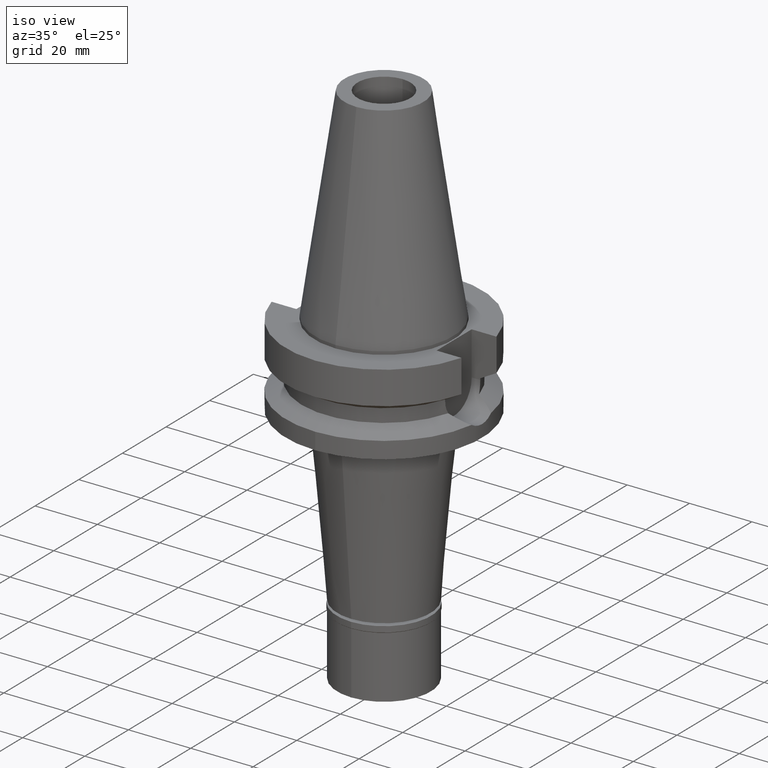
[diagram: clean part render]
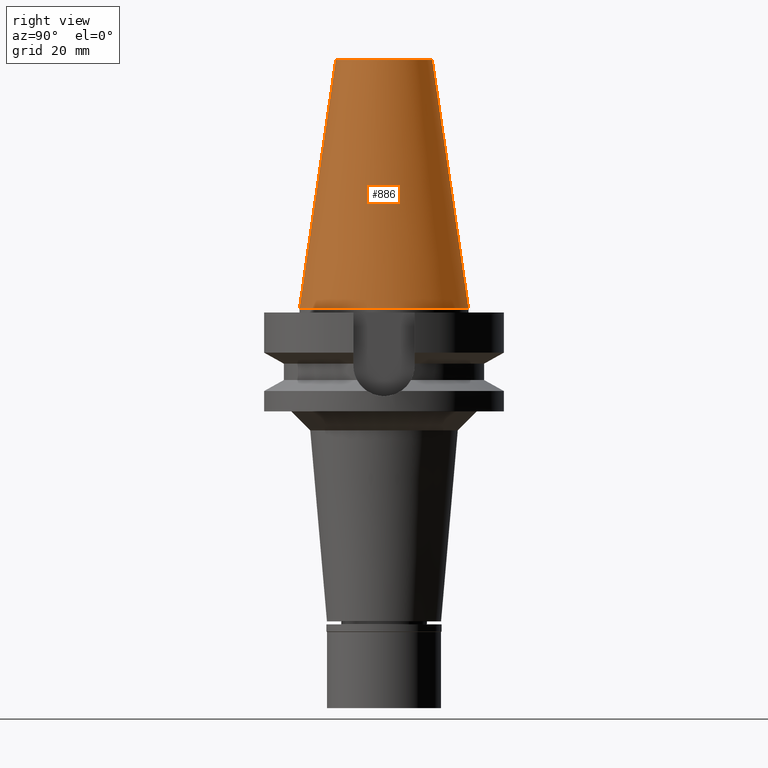
[diagram: tour spotlight — one face highlighted and labeled with its STEP entity id]
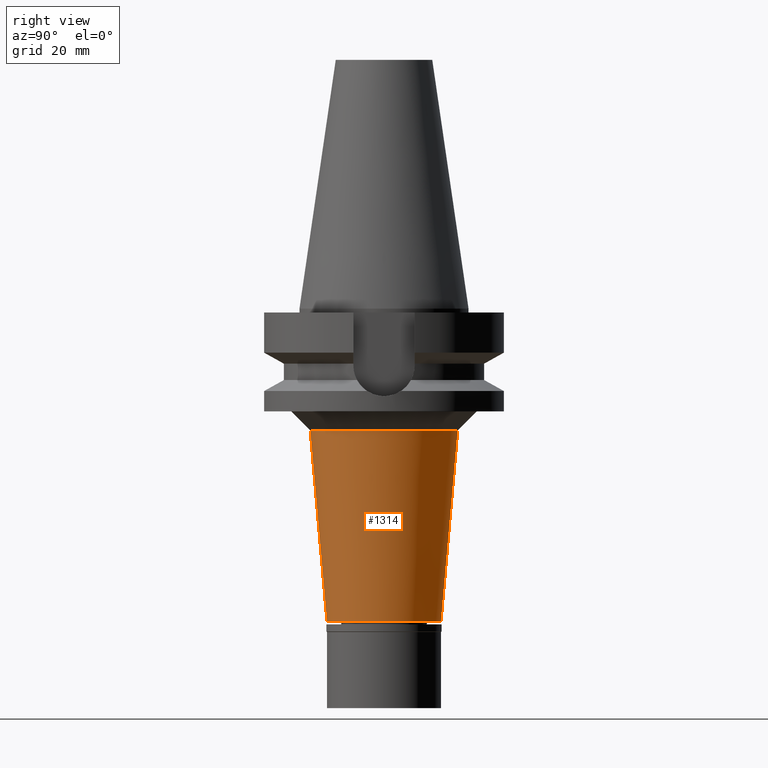
[diagram: tour spotlight — one face highlighted and labeled with its STEP entity id]
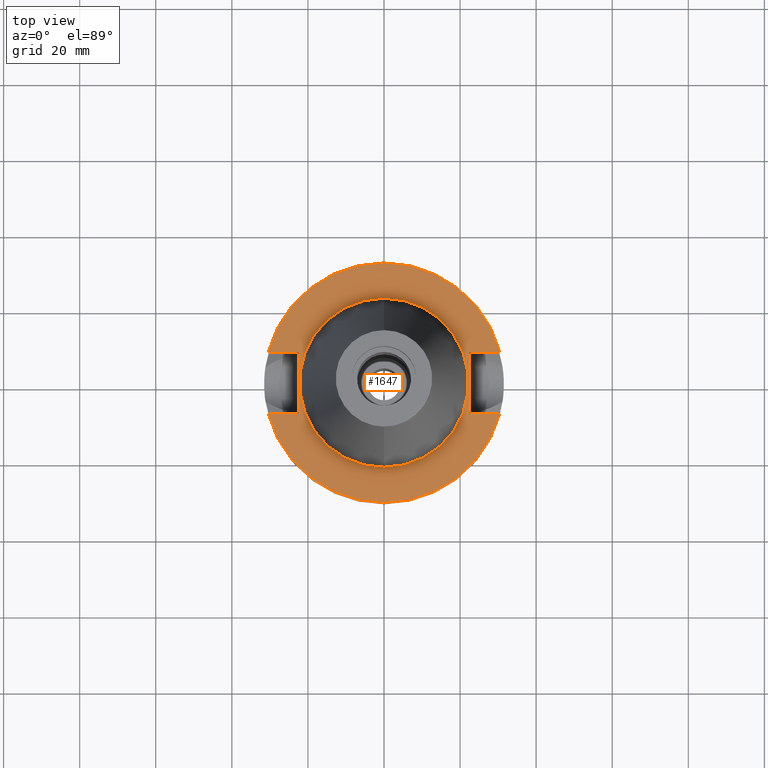
[diagram: tour spotlight — one face highlighted and labeled with its STEP entity id]
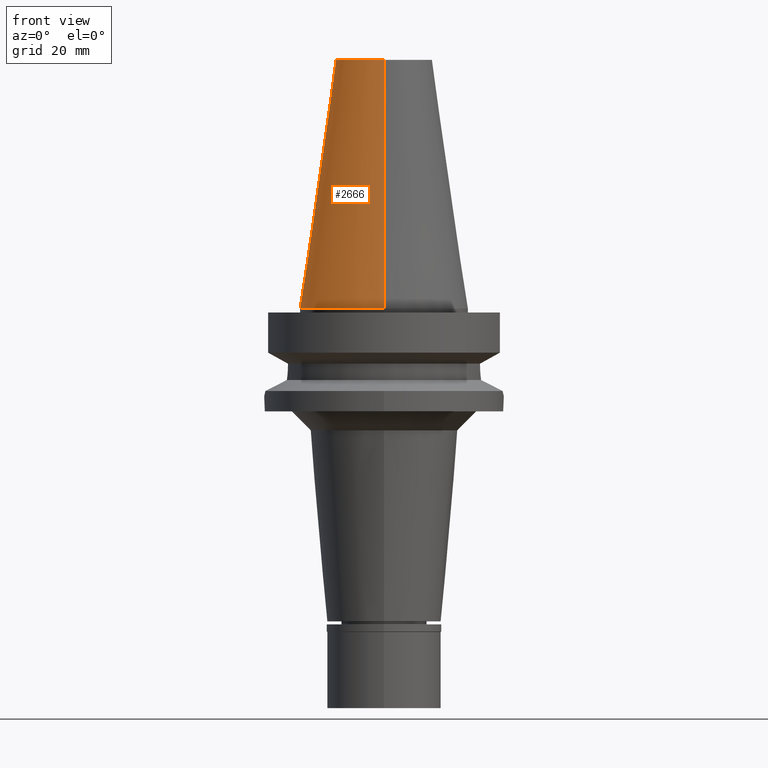
[diagram: tour spotlight — one face highlighted and labeled with its STEP entity id]
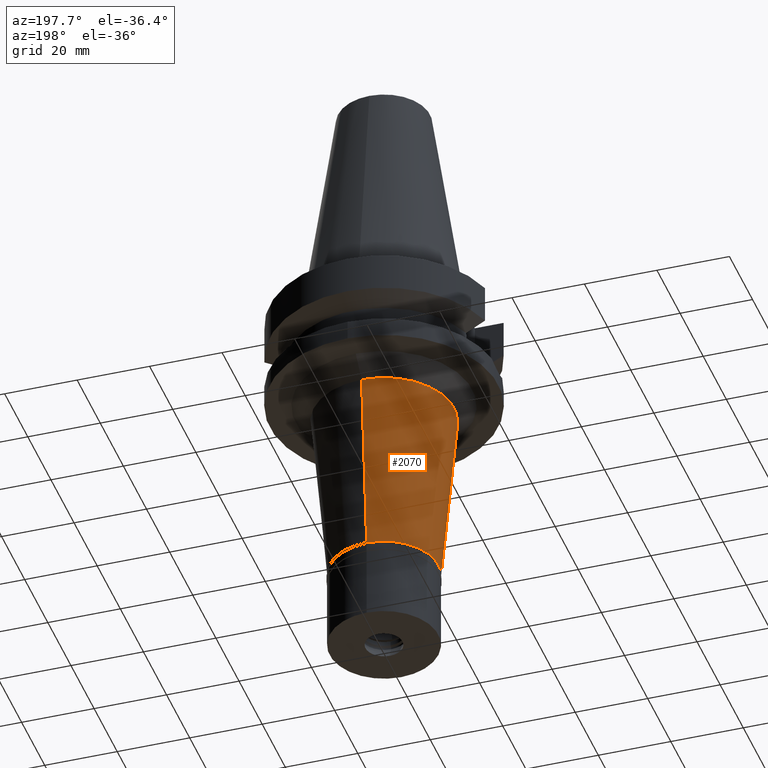
[diagram: tour spotlight — one face highlighted and labeled with its STEP entity id]
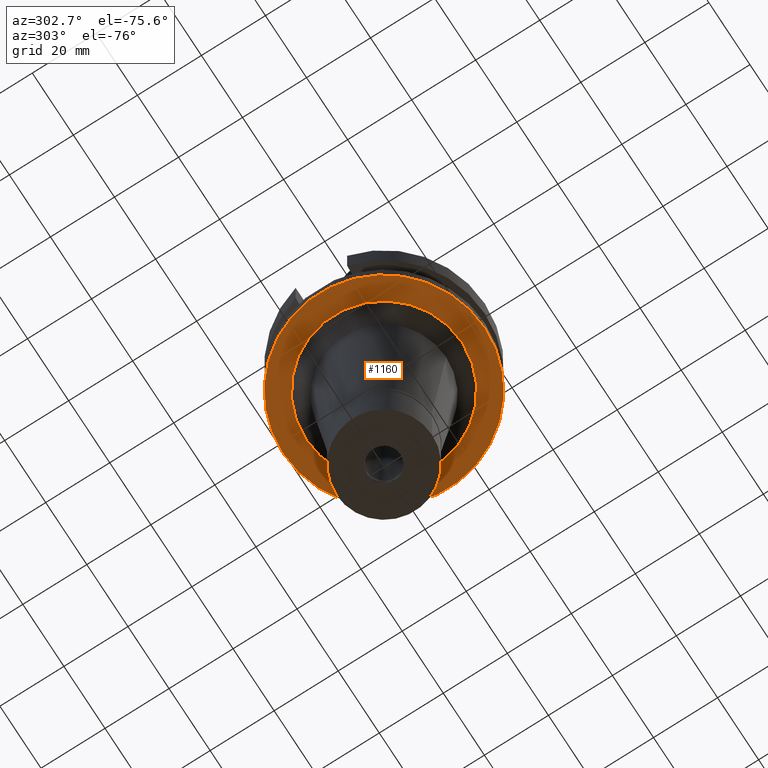
[diagram: tour spotlight — one face highlighted and labeled with its STEP entity id]
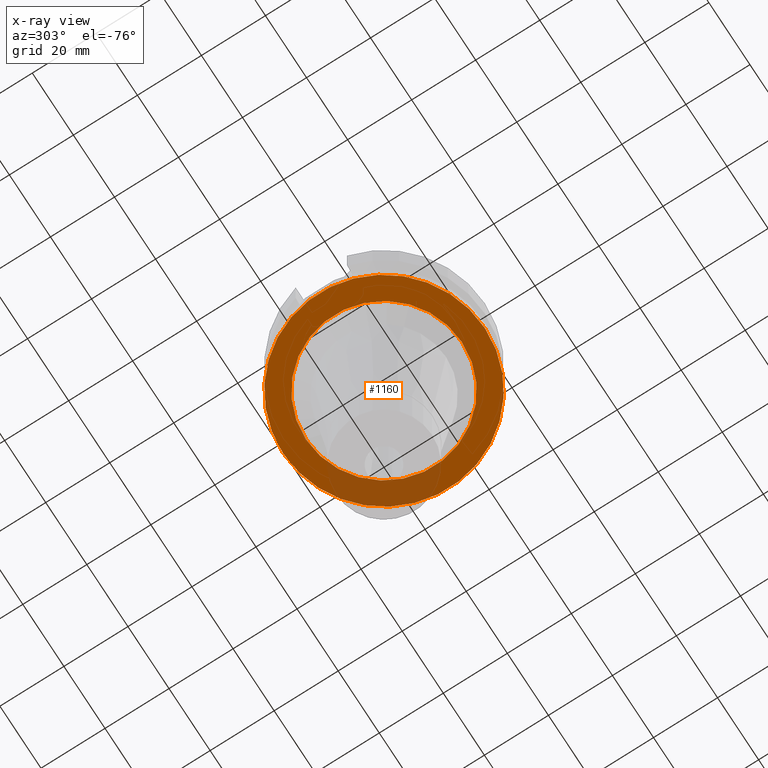
[diagram: x-ray of the same camera — body ghosted, this tour face saturated]
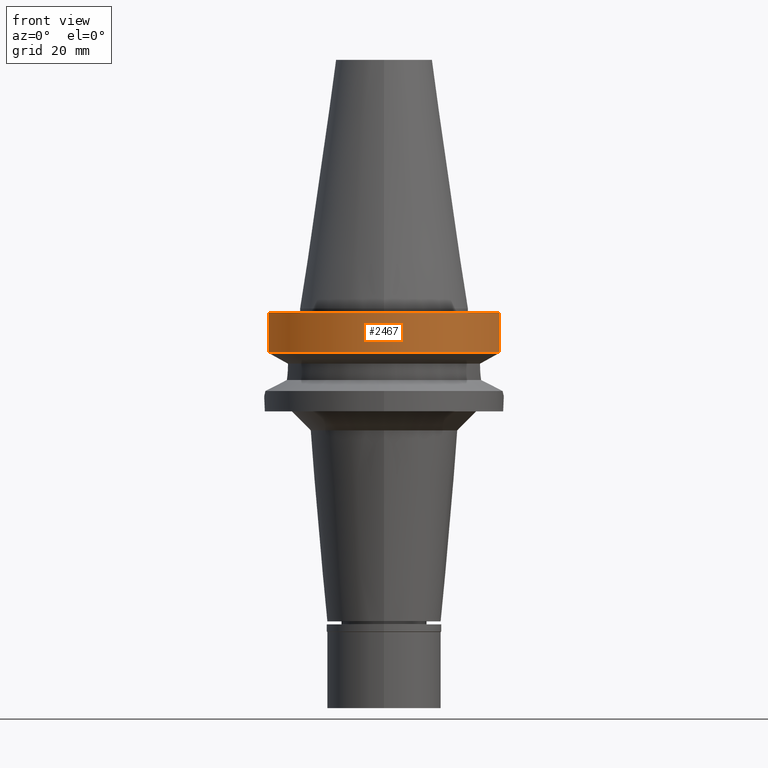
[diagram: tour spotlight — one face highlighted and labeled with its STEP entity id]
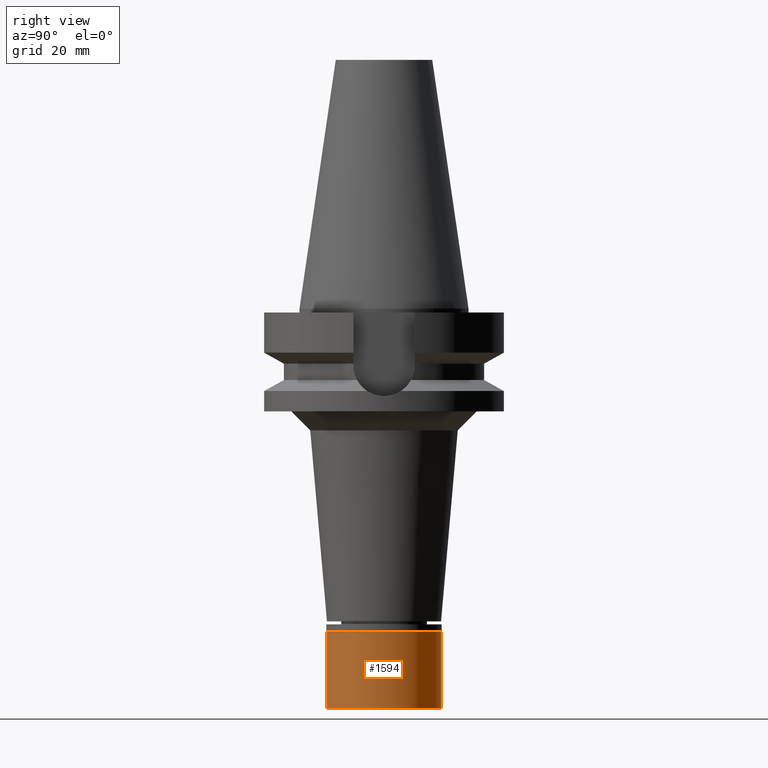
[diagram: tour spotlight — one face highlighted and labeled with its STEP entity id]
A machine part: a face-by-face anatomy tour. The part has 81 B-rep faces; the first image is the clean iso view, then the 8 largest visible faces are spotlighted one at a time (largest first), each with its STEP entity span.

Face 1 — right view, entity #886. In plain terms, the highlighted conical surface has half-angle 8.297 deg.
Definition (entity closure, byte-faithful):
#36 = CIRCLE ( 'NONE', #2490, 12.68766899429999917 ) ;
#93 = CARTESIAN_POINT ( 'NONE',  ( 0.0000000000000000000, 22.22500000000000142, 7.815970093360999808E-14 ) ) ;
#194 = CARTESIAN_POINT ( 'NONE',  ( 0.0000000000000000000, 1.625106302469000024E-14, 65.40000000000000568 ) ) ;
#249 = EDGE_CURVE ( 'NONE', #2617, #392, #2970, .T. ) ;
#284 = DIRECTION ( 'NONE',  ( 0.0000000000000000000, 0.0000000000000000000, -1.000000000000000000 ) ) ;
#298 = EDGE_CURVE ( 'NONE', #2639, #2617, #36, .T. ) ;
#311 = EDGE_LOOP ( 'NONE', ( #2395, #1339, #1179, #3008 ) ) ;
#376 = DIRECTION ( 'NONE',  ( 0.0000000000000000000, 0.0000000000000000000, -1.000000000000000000 ) ) ;
#392 = VERTEX_POINT ( 'NONE', #1626 ) ;
#644 = CARTESIAN_POINT ( 'NONE',  ( 0.0000000000000000000, 1.625106302469000024E-14, 32.70000000000000284 ) ) ;
#727 = DIRECTION ( 'NONE',  ( 0.0000000000000000000, 1.000000000000000000, 0.0000000000000000000 ) ) ;
#741 = EDGE_CURVE ( 'NONE', #2639, #1825, #826, .T. ) ;
#826 = LINE ( 'NONE', #857, #2342 ) ;
#857 = CARTESIAN_POINT ( 'NONE',  ( 0.0000000000000000000, 12.68766899429999917, 65.40000000000000568 ) ) ;
#885 = FACE_OUTER_BOUND ( 'NONE', #311, .T. ) ;
#886 = ADVANCED_FACE ( 'NONE', ( #885 ), #1258, .T. ) ;
#985 = AXIS2_PLACEMENT_3D ( 'NONE', #1750, #284, #727 ) ;
#1179 = ORIENTED_EDGE ( 'NONE', *, *, #2765, .F. ) ;
#1258 = CONICAL_SURFACE ( 'NONE', #2538, 17.45633449714999941, 0.1448099680379422438 ) ;
#1316 = DIRECTION ( 'NONE',  ( 0.0000000000000000000, 0.1443043893539925626, -0.9895333461855498891 ) ) ;
#1339 = ORIENTED_EDGE ( 'NONE', *, *, #249, .T. ) ;
#1354 = CARTESIAN_POINT ( 'NONE',  ( 0.0000000000000000000, -12.68766899429999917, 65.40000000000000568 ) ) ;
#1626 = CARTESIAN_POINT ( 'NONE',  ( 0.0000000000000000000, -22.22500000000000142, 7.815970093360999808E-14 ) ) ;
#1750 = CARTESIAN_POINT ( 'NONE',  ( 0.0000000000000000000, 1.625106302469000024E-14, 2.842170943039999687E-14 ) ) ;
#1825 = VERTEX_POINT ( 'NONE', #93 ) ;
#1867 = DIRECTION ( 'NONE',  ( 0.0000000000000000000, -1.000000000000000000, 0.0000000000000000000 ) ) ;
#1916 = DIRECTION ( 'NONE',  ( 0.0000000000000000000, 1.000000000000000000, 0.0000000000000000000 ) ) ;
#2342 = VECTOR ( 'NONE', #1316, 1000.000000000000114 ) ;
#2395 = ORIENTED_EDGE ( 'NONE', *, *, #298, .T. ) ;
#2490 = AXIS2_PLACEMENT_3D ( 'NONE', #194, #3059, #1916 ) ;
#2517 = CIRCLE ( 'NONE', #985, 22.22500000000000142 ) ;
#2538 = AXIS2_PLACEMENT_3D ( 'NONE', #644, #376, #1867 ) ;
#2601 = CARTESIAN_POINT ( 'NONE',  ( 0.0000000000000000000, -12.68766899429999917, 65.40000000000000568 ) ) ;
#2617 = VERTEX_POINT ( 'NONE', #2601 ) ;
#2620 = CARTESIAN_POINT ( 'NONE',  ( 0.0000000000000000000, 12.68766899429999917, 65.40000000000000568 ) ) ;
#2639 = VERTEX_POINT ( 'NONE', #2620 ) ;
#2765 = EDGE_CURVE ( 'NONE', #1825, #392, #2517, .T. ) ;
#2844 = VECTOR ( 'NONE', #3019, 1000.000000000000114 ) ;
#2970 = LINE ( 'NONE', #1354, #2844 ) ;
#3008 = ORIENTED_EDGE ( 'NONE', *, *, #741, .F. ) ;
#3019 = DIRECTION ( 'NONE',  ( 0.0000000000000000000, -0.1443043893539925626, -0.9895333461855498891 ) ) ;
#3059 = DIRECTION ( 'NONE',  ( 0.0000000000000000000, 0.0000000000000000000, -1.000000000000000000 ) ) ;

Face 2 — right view, entity #1314. In plain terms, the highlighted conical surface has half-angle 5 deg.
Definition (entity closure, byte-faithful):
#118 = VECTOR ( 'NONE', #2284, 1000.000000000000000 ) ;
#136 = LINE ( 'NONE', #1610, #1121 ) ;
#140 = CARTESIAN_POINT ( 'NONE',  ( 0.0000000000000000000, 0.0000000000000000000, -57.10000000000000142 ) ) ;
#334 = EDGE_CURVE ( 'NONE', #2235, #2457, #136, .T. ) ;
#351 = LINE ( 'NONE', #1860, #118 ) ;
#368 = DIRECTION ( 'NONE',  ( 0.0000000000000000000, -1.000000000000000000, 0.0000000000000000000 ) ) ;
#555 = DIRECTION ( 'NONE',  ( 0.0000000000000000000, -1.000000000000000000, 0.0000000000000000000 ) ) ;
#635 = CARTESIAN_POINT ( 'NONE',  ( 0.0000000000000000000, 0.0000000000000000000, -82.19999999999998863 ) ) ;
#744 = EDGE_CURVE ( 'NONE', #2880, #2235, #1317, .T. ) ;
#976 = ORIENTED_EDGE ( 'NONE', *, *, #1874, .T. ) ;
#1066 = DIRECTION ( 'NONE',  ( 0.0000000000000000000, 1.000000000000000000, 0.0000000000000000000 ) ) ;
#1121 = VECTOR ( 'NONE', #2579, 1000.000000000000000 ) ;
#1130 = DIRECTION ( 'NONE',  ( 0.0000000000000000000, 0.0000000000000000000, 1.000000000000000000 ) ) ;
#1314 = ADVANCED_FACE ( 'NONE', ( #1377 ), #1375, .T. ) ;
#1317 = CIRCLE ( 'NONE', #1575, 19.39193090899999916 ) ;
#1374 = DIRECTION ( 'NONE',  ( 0.0000000000000000000, 0.0000000000000000000, 1.000000000000000000 ) ) ;
#1375 = CONICAL_SURFACE ( 'NONE', #3131, 17.19596545450000136, 0.08726646259969973729 ) ;
#1377 = FACE_OUTER_BOUND ( 'NONE', #1869, .T. ) ;
#1395 = VERTEX_POINT ( 'NONE', #2598 ) ;
#1575 = AXIS2_PLACEMENT_3D ( 'NONE', #2756, #1769, #555 ) ;
#1584 = CARTESIAN_POINT ( 'NONE',  ( 0.0000000000000000000, -19.39193090899999916, -32.00000000000000000 ) ) ;
#1610 = CARTESIAN_POINT ( 'NONE',  ( 0.0000000000000000000, 19.39193090899999916, -32.00000000000000000 ) ) ;
#1769 = DIRECTION ( 'NONE',  ( 0.0000000000000000000, 0.0000000000000000000, 1.000000000000000000 ) ) ;
#1816 = EDGE_CURVE ( 'NONE', #2880, #1395, #351, .T. ) ;
#1860 = CARTESIAN_POINT ( 'NONE',  ( 0.0000000000000000000, -19.39193090899999916, -32.00000000000000000 ) ) ;
#1869 = EDGE_LOOP ( 'NONE', ( #2057, #2984, #976, #2159 ) ) ;
#1874 = EDGE_CURVE ( 'NONE', #1395, #2457, #2775, .T. ) ;
#1990 = CARTESIAN_POINT ( 'NONE',  ( 0.0000000000000000000, 19.39193090899999916, -32.00000000000000000 ) ) ;
#2057 = ORIENTED_EDGE ( 'NONE', *, *, #744, .F. ) ;
#2159 = ORIENTED_EDGE ( 'NONE', *, *, #334, .F. ) ;
#2235 = VERTEX_POINT ( 'NONE', #1990 ) ;
#2284 = DIRECTION ( 'NONE',  ( 0.0000000000000000000, 0.08715574274765398866, -0.9961946980917458783 ) ) ;
#2290 = CARTESIAN_POINT ( 'NONE',  ( 0.0000000000000000000, 15.00000000000000000, -82.19999999999998863 ) ) ;
#2457 = VERTEX_POINT ( 'NONE', #2290 ) ;
#2579 = DIRECTION ( 'NONE',  ( 0.0000000000000000000, -0.08715574274765398866, -0.9961946980917458783 ) ) ;
#2598 = CARTESIAN_POINT ( 'NONE',  ( 0.0000000000000000000, -15.00000000000000000, -82.19999999999998863 ) ) ;
#2632 = AXIS2_PLACEMENT_3D ( 'NONE', #635, #1374, #368 ) ;
#2756 = CARTESIAN_POINT ( 'NONE',  ( 0.0000000000000000000, 0.0000000000000000000, -32.00000000000000000 ) ) ;
#2775 = CIRCLE ( 'NONE', #2632, 15.00000000000000000 ) ;
#2880 = VERTEX_POINT ( 'NONE', #1584 ) ;
#2984 = ORIENTED_EDGE ( 'NONE', *, *, #1816, .T. ) ;
#3131 = AXIS2_PLACEMENT_3D ( 'NONE', #140, #1130, #1066 ) ;

Face 3 — top view, entity #1647. In plain terms, the highlighted planar face has unit normal (0, 0, -1).
Definition (entity closure, byte-faithful):
#41 = FACE_OUTER_BOUND ( 'NONE', #2684, .T. ) ;
#64 = CARTESIAN_POINT ( 'NONE',  ( -22.50000000000000000, -8.050000000000000711, -1.000000000000000000 ) ) ;
#106 = CARTESIAN_POINT ( 'NONE',  ( 22.50000000000000000, 8.050000000000000711, -1.000000000000000000 ) ) ;
#139 = CARTESIAN_POINT ( 'NONE',  ( -22.50000000000000000, 8.050000000000000711, -1.000000000000000000 ) ) ;
#169 = ORIENTED_EDGE ( 'NONE', *, *, #283, .F. ) ;
#202 = EDGE_LOOP ( 'NONE', ( #1708, #1279 ) ) ;
#223 = ORIENTED_EDGE ( 'NONE', *, *, #431, .F. ) ;
#231 = EDGE_CURVE ( 'NONE', #493, #1411, #1019, .T. ) ;
#243 = DIRECTION ( 'NONE',  ( 0.0000000000000000000, 1.000000000000000000, 0.0000000000000000000 ) ) ;
#283 = EDGE_CURVE ( 'NONE', #624, #2294, #876, .T. ) ;
#331 = CARTESIAN_POINT ( 'NONE',  ( 0.0000000000000000000, 22.22500000000000142, -1.000000000000000000 ) ) ;
#386 = EDGE_CURVE ( 'NONE', #2992, #2748, #1272, .T. ) ;
#396 = CARTESIAN_POINT ( 'NONE',  ( 0.0000000000000000000, 2.125803146300000032E-14, -1.000000000000000000 ) ) ;
#431 = EDGE_CURVE ( 'NONE', #1640, #854, #2096, .T. ) ;
#493 = VERTEX_POINT ( 'NONE', #677 ) ;
#516 = EDGE_CURVE ( 'NONE', #1946, #624, #1956, .T. ) ;
#522 = CARTESIAN_POINT ( 'NONE',  ( -30.45402272279000044, 8.050000000000000711, -1.000000000000000000 ) ) ;
#585 = VECTOR ( 'NONE', #3011, 1000.000000000000000 ) ;
#624 = VERTEX_POINT ( 'NONE', #522 ) ;
#626 = DIRECTION ( 'NONE',  ( 0.0000000000000000000, 1.000000000000000000, 0.0000000000000000000 ) ) ;
#633 = DIRECTION ( 'NONE',  ( 0.0000000000000000000, 0.0000000000000000000, -1.000000000000000000 ) ) ;
#677 = CARTESIAN_POINT ( 'NONE',  ( 0.0000000000000000000, -22.22500000000000142, -1.000000000000000000 ) ) ;
#692 = CARTESIAN_POINT ( 'NONE',  ( 22.50000000000000000, 8.050000000000000711, -1.000000000000000000 ) ) ;
#747 = VECTOR ( 'NONE', #2210, 1000.000000000000000 ) ;
#756 = CARTESIAN_POINT ( 'NONE',  ( 22.50000000000000000, 8.050000000000000711, -1.000000000000000000 ) ) ;
#854 = VERTEX_POINT ( 'NONE', #1134 ) ;
#876 = CIRCLE ( 'NONE', #2179, 31.50000000000000000 ) ;
#932 = DIRECTION ( 'NONE',  ( 0.0000000000000000000, -1.000000000000000000, 0.0000000000000000000 ) ) ;
#975 = EDGE_CURVE ( 'NONE', #1411, #493, #1001, .T. ) ;
#1001 = CIRCLE ( 'NONE', #2784, 22.22500000000000142 ) ;
#1018 = DIRECTION ( 'NONE',  ( 0.0000000000000000000, 0.0000000000000000000, 1.000000000000000000 ) ) ;
#1019 = CIRCLE ( 'NONE', #2286, 22.22500000000000142 ) ;
#1027 = DIRECTION ( 'NONE',  ( -1.000000000000000000, -3.550916904668000126E-14, 0.0000000000000000000 ) ) ;
#1030 = CARTESIAN_POINT ( 'NONE',  ( 0.0000000000000000000, 1.212400331155999925E-14, -1.000000000000000000 ) ) ;
#1047 = PLANE ( 'NONE',  #1971 ) ;
#1086 = VERTEX_POINT ( 'NONE', #2221 ) ;
#1134 = CARTESIAN_POINT ( 'NONE',  ( 22.50000000000000000, -8.050000000000000711, -1.000000000000000000 ) ) ;
#1197 = ORIENTED_EDGE ( 'NONE', *, *, #2993, .T. ) ;
#1206 = CARTESIAN_POINT ( 'NONE',  ( -30.45402272279000044, -8.050000000000000711, -1.000000000000000000 ) ) ;
#1272 = CIRCLE ( 'NONE', #2942, 31.50000000000000000 ) ;
#1273 = ORIENTED_EDGE ( 'NONE', *, *, #2260, .F. ) ;
#1279 = ORIENTED_EDGE ( 'NONE', *, *, #231, .F. ) ;
#1411 = VERTEX_POINT ( 'NONE', #331 ) ;
#1533 = CARTESIAN_POINT ( 'NONE',  ( 0.0000000000000000000, 2.125803146300000032E-14, -1.000000000000000000 ) ) ;
#1538 = DIRECTION ( 'NONE',  ( 1.000000000000000000, 3.573249715389999860E-14, 0.0000000000000000000 ) ) ;
#1599 = LINE ( 'NONE', #64, #2055 ) ;
#1605 = CARTESIAN_POINT ( 'NONE',  ( 0.0000000000000000000, 2.125803146300000032E-14, -1.000000000000000000 ) ) ;
#1637 = VECTOR ( 'NONE', #1027, 1000.000000000000000 ) ;
#1640 = VERTEX_POINT ( 'NONE', #756 ) ;
#1647 = ADVANCED_FACE ( 'NONE', ( #41, #1775 ), #1047, .F. ) ;
#1676 = VECTOR ( 'NONE', #2595, 1000.000000000000000 ) ;
#1701 = CARTESIAN_POINT ( 'NONE',  ( 22.50000000000000000, -8.050000000000000711, -1.000000000000000000 ) ) ;
#1708 = ORIENTED_EDGE ( 'NONE', *, *, #975, .F. ) ;
#1775 = FACE_BOUND ( 'NONE', #202, .T. ) ;
#1821 = CARTESIAN_POINT ( 'NONE',  ( 0.0000000000000000000, 2.125803146300000032E-14, -1.000000000000000000 ) ) ;
#1837 = DIRECTION ( 'NONE',  ( 0.0000000000000000000, 0.0000000000000000000, -1.000000000000000000 ) ) ;
#1851 = EDGE_CURVE ( 'NONE', #1640, #2294, #2097, .T. ) ;
#1922 = ORIENTED_EDGE ( 'NONE', *, *, #1851, .T. ) ;
#1946 = VERTEX_POINT ( 'NONE', #139 ) ;
#1956 = LINE ( 'NONE', #2165, #1637 ) ;
#1971 = AXIS2_PLACEMENT_3D ( 'NONE', #1030, #1998, #2963 ) ;
#1998 = DIRECTION ( 'NONE',  ( 0.0000000000000000000, 0.0000000000000000000, -1.000000000000000000 ) ) ;
#2055 = VECTOR ( 'NONE', #2750, 1000.000000000000000 ) ;
#2096 = LINE ( 'NONE', #692, #1676 ) ;
#2097 = LINE ( 'NONE', #106, #585 ) ;
#2165 = CARTESIAN_POINT ( 'NONE',  ( -22.50000000000000000, 8.050000000000000711, -1.000000000000000000 ) ) ;
#2179 = AXIS2_PLACEMENT_3D ( 'NONE', #1605, #1837, #626 ) ;
#2193 = CARTESIAN_POINT ( 'NONE',  ( 30.45402272279000044, 8.050000000000000711, -1.000000000000000000 ) ) ;
#2210 = DIRECTION ( 'NONE',  ( 0.0000000000000000000, 1.000000000000000000, 0.0000000000000000000 ) ) ;
#2221 = CARTESIAN_POINT ( 'NONE',  ( -22.50000000000000000, -8.050000000000000711, -1.000000000000000000 ) ) ;
#2226 = ORIENTED_EDGE ( 'NONE', *, *, #516, .F. ) ;
#2260 = EDGE_CURVE ( 'NONE', #1086, #1946, #2735, .T. ) ;
#2286 = AXIS2_PLACEMENT_3D ( 'NONE', #1821, #2792, #2309 ) ;
#2288 = CARTESIAN_POINT ( 'NONE',  ( 30.45402272279000044, -8.050000000000000711, -1.000000000000000000 ) ) ;
#2294 = VERTEX_POINT ( 'NONE', #2193 ) ;
#2296 = EDGE_CURVE ( 'NONE', #854, #2992, #2470, .T. ) ;
#2309 = DIRECTION ( 'NONE',  ( 0.0000000000000000000, -1.000000000000000000, 0.0000000000000000000 ) ) ;
#2470 = LINE ( 'NONE', #1701, #2927 ) ;
#2595 = DIRECTION ( 'NONE',  ( 0.0000000000000000000, -1.000000000000000000, 0.0000000000000000000 ) ) ;
#2618 = ORIENTED_EDGE ( 'NONE', *, *, #2296, .F. ) ;
#2684 = EDGE_LOOP ( 'NONE', ( #1197, #2828, #2618, #223, #1922, #169, #2226, #1273 ) ) ;
#2735 = LINE ( 'NONE', #3142, #747 ) ;
#2748 = VERTEX_POINT ( 'NONE', #1206 ) ;
#2750 = DIRECTION ( 'NONE',  ( -1.000000000000000000, 3.550916904668000126E-14, 0.0000000000000000000 ) ) ;
#2784 = AXIS2_PLACEMENT_3D ( 'NONE', #1533, #1018, #243 ) ;
#2792 = DIRECTION ( 'NONE',  ( 0.0000000000000000000, 0.0000000000000000000, 1.000000000000000000 ) ) ;
#2828 = ORIENTED_EDGE ( 'NONE', *, *, #386, .F. ) ;
#2927 = VECTOR ( 'NONE', #1538, 1000.000000000000000 ) ;
#2942 = AXIS2_PLACEMENT_3D ( 'NONE', #396, #633, #932 ) ;
#2963 = DIRECTION ( 'NONE',  ( 0.0000000000000000000, -1.000000000000000000, 0.0000000000000000000 ) ) ;
#2992 = VERTEX_POINT ( 'NONE', #2288 ) ;
#2993 = EDGE_CURVE ( 'NONE', #1086, #2748, #1599, .T. ) ;
#3011 = DIRECTION ( 'NONE',  ( 1.000000000000000000, -3.506251283225999947E-14, 0.0000000000000000000 ) ) ;
#3142 = CARTESIAN_POINT ( 'NONE',  ( -22.50000000000000000, -8.050000000000000711, -1.000000000000000000 ) ) ;

Face 4 — front view, entity #2666. In plain terms, the highlighted conical surface has half-angle 8.297 deg.
Definition (entity closure, byte-faithful):
#22 = CIRCLE ( 'NONE', #2327, 22.22500000000000142 ) ;
#93 = CARTESIAN_POINT ( 'NONE',  ( 0.0000000000000000000, 22.22500000000000142, 7.815970093360999808E-14 ) ) ;
#204 = DIRECTION ( 'NONE',  ( 0.0000000000000000000, 0.0000000000000000000, -1.000000000000000000 ) ) ;
#220 = CARTESIAN_POINT ( 'NONE',  ( 0.0000000000000000000, 1.625106302469000024E-14, 65.40000000000000568 ) ) ;
#226 = AXIS2_PLACEMENT_3D ( 'NONE', #1442, #204, #1195 ) ;
#249 = EDGE_CURVE ( 'NONE', #2617, #392, #2970, .T. ) ;
#392 = VERTEX_POINT ( 'NONE', #1626 ) ;
#494 = DIRECTION ( 'NONE',  ( 0.0000000000000000000, -1.000000000000000000, 0.0000000000000000000 ) ) ;
#525 = ORIENTED_EDGE ( 'NONE', *, *, #1108, .F. ) ;
#667 = EDGE_CURVE ( 'NONE', #2617, #2639, #2605, .T. ) ;
#668 = ORIENTED_EDGE ( 'NONE', *, *, #249, .F. ) ;
#741 = EDGE_CURVE ( 'NONE', #2639, #1825, #826, .T. ) ;
#826 = LINE ( 'NONE', #857, #2342 ) ;
#857 = CARTESIAN_POINT ( 'NONE',  ( 0.0000000000000000000, 12.68766899429999917, 65.40000000000000568 ) ) ;
#982 = CARTESIAN_POINT ( 'NONE',  ( 0.0000000000000000000, 1.625106302469000024E-14, 2.842170943039999687E-14 ) ) ;
#1108 = EDGE_CURVE ( 'NONE', #392, #1825, #22, .T. ) ;
#1195 = DIRECTION ( 'NONE',  ( 0.0000000000000000000, -1.000000000000000000, 0.0000000000000000000 ) ) ;
#1213 = DIRECTION ( 'NONE',  ( 0.0000000000000000000, 0.0000000000000000000, -1.000000000000000000 ) ) ;
#1316 = DIRECTION ( 'NONE',  ( 0.0000000000000000000, 0.1443043893539925626, -0.9895333461855498891 ) ) ;
#1354 = CARTESIAN_POINT ( 'NONE',  ( 0.0000000000000000000, -12.68766899429999917, 65.40000000000000568 ) ) ;
#1442 = CARTESIAN_POINT ( 'NONE',  ( 0.0000000000000000000, 1.625106302469000024E-14, 32.70000000000000284 ) ) ;
#1565 = EDGE_LOOP ( 'NONE', ( #525, #668, #2803, #1609 ) ) ;
#1609 = ORIENTED_EDGE ( 'NONE', *, *, #741, .T. ) ;
#1626 = CARTESIAN_POINT ( 'NONE',  ( 0.0000000000000000000, -22.22500000000000142, 7.815970093360999808E-14 ) ) ;
#1825 = VERTEX_POINT ( 'NONE', #93 ) ;
#2021 = DIRECTION ( 'NONE',  ( 0.0000000000000000000, 0.0000000000000000000, -1.000000000000000000 ) ) ;
#2182 = DIRECTION ( 'NONE',  ( 0.0000000000000000000, -1.000000000000000000, 0.0000000000000000000 ) ) ;
#2183 = AXIS2_PLACEMENT_3D ( 'NONE', #220, #1213, #2182 ) ;
#2327 = AXIS2_PLACEMENT_3D ( 'NONE', #982, #2021, #494 ) ;
#2342 = VECTOR ( 'NONE', #1316, 1000.000000000000114 ) ;
#2588 = FACE_OUTER_BOUND ( 'NONE', #1565, .T. ) ;
#2601 = CARTESIAN_POINT ( 'NONE',  ( 0.0000000000000000000, -12.68766899429999917, 65.40000000000000568 ) ) ;
#2605 = CIRCLE ( 'NONE', #2183, 12.68766899429999917 ) ;
#2617 = VERTEX_POINT ( 'NONE', #2601 ) ;
#2620 = CARTESIAN_POINT ( 'NONE',  ( 0.0000000000000000000, 12.68766899429999917, 65.40000000000000568 ) ) ;
#2639 = VERTEX_POINT ( 'NONE', #2620 ) ;
#2666 = ADVANCED_FACE ( 'NONE', ( #2588 ), #2987, .T. ) ;
#2803 = ORIENTED_EDGE ( 'NONE', *, *, #667, .T. ) ;
#2844 = VECTOR ( 'NONE', #3019, 1000.000000000000114 ) ;
#2970 = LINE ( 'NONE', #1354, #2844 ) ;
#2987 = CONICAL_SURFACE ( 'NONE', #226, 17.45633449714999941, 0.1448099680379422438 ) ;
#3019 = DIRECTION ( 'NONE',  ( 0.0000000000000000000, -0.1443043893539925626, -0.9895333461855498891 ) ) ;

Face 5 — auxiliary view, entity #2070. In plain terms, the highlighted conical surface has half-angle 5 deg.
Definition (entity closure, byte-faithful):
#118 = VECTOR ( 'NONE', #2284, 1000.000000000000000 ) ;
#126 = CIRCLE ( 'NONE', #436, 15.00000000000000000 ) ;
#136 = LINE ( 'NONE', #1610, #1121 ) ;
#292 = CARTESIAN_POINT ( 'NONE',  ( 0.0000000000000000000, 0.0000000000000000000, -32.00000000000000000 ) ) ;
#334 = EDGE_CURVE ( 'NONE', #2235, #2457, #136, .T. ) ;
#351 = LINE ( 'NONE', #1860, #118 ) ;
#436 = AXIS2_PLACEMENT_3D ( 'NONE', #1787, #2247, #2310 ) ;
#458 = CARTESIAN_POINT ( 'NONE',  ( 0.0000000000000000000, 0.0000000000000000000, -57.10000000000000142 ) ) ;
#786 = EDGE_CURVE ( 'NONE', #2880, #2235, #1205, .T. ) ;
#789 = EDGE_CURVE ( 'NONE', #2457, #1395, #126, .T. ) ;
#888 = ORIENTED_EDGE ( 'NONE', *, *, #334, .T. ) ;
#957 = DIRECTION ( 'NONE',  ( 0.0000000000000000000, 0.0000000000000000000, 1.000000000000000000 ) ) ;
#1121 = VECTOR ( 'NONE', #2579, 1000.000000000000000 ) ;
#1149 = AXIS2_PLACEMENT_3D ( 'NONE', #458, #957, #2838 ) ;
#1205 = CIRCLE ( 'NONE', #1464, 19.39193090899999916 ) ;
#1284 = EDGE_LOOP ( 'NONE', ( #2836, #2734, #2152, #888 ) ) ;
#1395 = VERTEX_POINT ( 'NONE', #2598 ) ;
#1464 = AXIS2_PLACEMENT_3D ( 'NONE', #292, #1806, #2723 ) ;
#1584 = CARTESIAN_POINT ( 'NONE',  ( 0.0000000000000000000, -19.39193090899999916, -32.00000000000000000 ) ) ;
#1610 = CARTESIAN_POINT ( 'NONE',  ( 0.0000000000000000000, 19.39193090899999916, -32.00000000000000000 ) ) ;
#1787 = CARTESIAN_POINT ( 'NONE',  ( 0.0000000000000000000, 0.0000000000000000000, -82.19999999999998863 ) ) ;
#1806 = DIRECTION ( 'NONE',  ( 0.0000000000000000000, 0.0000000000000000000, -1.000000000000000000 ) ) ;
#1816 = EDGE_CURVE ( 'NONE', #2880, #1395, #351, .T. ) ;
#1860 = CARTESIAN_POINT ( 'NONE',  ( 0.0000000000000000000, -19.39193090899999916, -32.00000000000000000 ) ) ;
#1873 = FACE_OUTER_BOUND ( 'NONE', #1284, .T. ) ;
#1990 = CARTESIAN_POINT ( 'NONE',  ( 0.0000000000000000000, 19.39193090899999916, -32.00000000000000000 ) ) ;
#2070 = ADVANCED_FACE ( 'NONE', ( #1873 ), #2528, .T. ) ;
#2152 = ORIENTED_EDGE ( 'NONE', *, *, #786, .T. ) ;
#2235 = VERTEX_POINT ( 'NONE', #1990 ) ;
#2247 = DIRECTION ( 'NONE',  ( 0.0000000000000000000, 0.0000000000000000000, 1.000000000000000000 ) ) ;
#2284 = DIRECTION ( 'NONE',  ( 0.0000000000000000000, 0.08715574274765398866, -0.9961946980917458783 ) ) ;
#2290 = CARTESIAN_POINT ( 'NONE',  ( 0.0000000000000000000, 15.00000000000000000, -82.19999999999998863 ) ) ;
#2310 = DIRECTION ( 'NONE',  ( 0.0000000000000000000, 1.000000000000000000, 0.0000000000000000000 ) ) ;
#2457 = VERTEX_POINT ( 'NONE', #2290 ) ;
#2528 = CONICAL_SURFACE ( 'NONE', #1149, 17.19596545450000136, 0.08726646259969973729 ) ;
#2579 = DIRECTION ( 'NONE',  ( 0.0000000000000000000, -0.08715574274765398866, -0.9961946980917458783 ) ) ;
#2598 = CARTESIAN_POINT ( 'NONE',  ( 0.0000000000000000000, -15.00000000000000000, -82.19999999999998863 ) ) ;
#2723 = DIRECTION ( 'NONE',  ( 0.0000000000000000000, -1.000000000000000000, 0.0000000000000000000 ) ) ;
#2734 = ORIENTED_EDGE ( 'NONE', *, *, #1816, .F. ) ;
#2836 = ORIENTED_EDGE ( 'NONE', *, *, #789, .T. ) ;
#2838 = DIRECTION ( 'NONE',  ( 0.0000000000000000000, 1.000000000000000000, 0.0000000000000000000 ) ) ;
#2880 = VERTEX_POINT ( 'NONE', #1584 ) ;

Face 6 — auxiliary view, entity #1160. An x-ray twin of the same camera follows (body ghosted, this face saturated) — the face is partly hidden behind the body. In plain terms, the highlighted planar face has unit normal (0, 0, -1).
Definition (entity closure, byte-faithful):
#80 = AXIS2_PLACEMENT_3D ( 'NONE', #2534, #1846, #3013 ) ;
#179 = AXIS2_PLACEMENT_3D ( 'NONE', #353, #3029, #1583 ) ;
#329 = ORIENTED_EDGE ( 'NONE', *, *, #970, .F. ) ;
#353 = CARTESIAN_POINT ( 'NONE',  ( 0.0000000000000000000, 0.0000000000000000000, -27.00000000000000000 ) ) ;
#388 = EDGE_LOOP ( 'NONE', ( #896, #1311 ) ) ;
#499 = EDGE_CURVE ( 'NONE', #675, #964, #2602, .T. ) ;
#599 = CIRCLE ( 'NONE', #2377, 24.39193090899999916 ) ;
#614 = AXIS2_PLACEMENT_3D ( 'NONE', #2233, #1243, #972 ) ;
#627 = DIRECTION ( 'NONE',  ( 0.0000000000000000000, 0.0000000000000000000, 1.000000000000000000 ) ) ;
#653 = PLANE ( 'NONE',  #80 ) ;
#675 = VERTEX_POINT ( 'NONE', #1705 ) ;
#697 = CARTESIAN_POINT ( 'NONE',  ( 0.0000000000000000000, 24.39193090899999916, -27.00000000000000000 ) ) ;
#805 = AXIS2_PLACEMENT_3D ( 'NONE', #1620, #627, #2137 ) ;
#818 = EDGE_CURVE ( 'NONE', #964, #675, #2170, .T. ) ;
#881 = FACE_BOUND ( 'NONE', #1077, .T. ) ;
#896 = ORIENTED_EDGE ( 'NONE', *, *, #818, .F. ) ;
#964 = VERTEX_POINT ( 'NONE', #2950 ) ;
#970 = EDGE_CURVE ( 'NONE', #2129, #2647, #599, .T. ) ;
#972 = DIRECTION ( 'NONE',  ( 0.0000000000000000000, -1.000000000000000000, 0.0000000000000000000 ) ) ;
#991 = CARTESIAN_POINT ( 'NONE',  ( 0.0000000000000000000, -24.39193090899999916, -27.00000000000000000 ) ) ;
#1016 = ORIENTED_EDGE ( 'NONE', *, *, #1210, .F. ) ;
#1077 = EDGE_LOOP ( 'NONE', ( #1016, #329 ) ) ;
#1160 = ADVANCED_FACE ( 'NONE', ( #2749, #881 ), #653, .T. ) ;
#1210 = EDGE_CURVE ( 'NONE', #2647, #2129, #1823, .T. ) ;
#1235 = CARTESIAN_POINT ( 'NONE',  ( 0.0000000000000000000, 0.0000000000000000000, -27.00000000000000000 ) ) ;
#1243 = DIRECTION ( 'NONE',  ( 0.0000000000000000000, 0.0000000000000000000, 1.000000000000000000 ) ) ;
#1254 = DIRECTION ( 'NONE',  ( 0.0000000000000000000, -1.000000000000000000, 0.0000000000000000000 ) ) ;
#1311 = ORIENTED_EDGE ( 'NONE', *, *, #499, .F. ) ;
#1583 = DIRECTION ( 'NONE',  ( 0.0000000000000000000, 1.000000000000000000, 0.0000000000000000000 ) ) ;
#1620 = CARTESIAN_POINT ( 'NONE',  ( 0.0000000000000000000, 2.125803146300000032E-14, -27.00000000000000000 ) ) ;
#1705 = CARTESIAN_POINT ( 'NONE',  ( 0.0000000000000000000, -31.50000000000000000, -27.00000000000000000 ) ) ;
#1823 = CIRCLE ( 'NONE', #179, 24.39193090899999916 ) ;
#1846 = DIRECTION ( 'NONE',  ( 0.0000000000000000000, 0.0000000000000000000, -1.000000000000000000 ) ) ;
#2129 = VERTEX_POINT ( 'NONE', #991 ) ;
#2137 = DIRECTION ( 'NONE',  ( 0.0000000000000000000, 1.000000000000000000, 0.0000000000000000000 ) ) ;
#2170 = CIRCLE ( 'NONE', #805, 31.50000000000000000 ) ;
#2233 = CARTESIAN_POINT ( 'NONE',  ( 0.0000000000000000000, 2.125803146300000032E-14, -27.00000000000000000 ) ) ;
#2377 = AXIS2_PLACEMENT_3D ( 'NONE', #1235, #2699, #1254 ) ;
#2534 = CARTESIAN_POINT ( 'NONE',  ( 0.0000000000000000000, 0.0000000000000000000, -27.00000000000000000 ) ) ;
#2602 = CIRCLE ( 'NONE', #614, 31.50000000000000000 ) ;
#2647 = VERTEX_POINT ( 'NONE', #697 ) ;
#2699 = DIRECTION ( 'NONE',  ( 0.0000000000000000000, 0.0000000000000000000, -1.000000000000000000 ) ) ;
#2749 = FACE_OUTER_BOUND ( 'NONE', #388, .T. ) ;
#2950 = CARTESIAN_POINT ( 'NONE',  ( 0.0000000000000000000, 31.50000000000000000, -27.00000000000000000 ) ) ;
#3013 = DIRECTION ( 'NONE',  ( 0.0000000000000000000, -1.000000000000000000, 0.0000000000000000000 ) ) ;
#3029 = DIRECTION ( 'NONE',  ( 0.0000000000000000000, 0.0000000000000000000, -1.000000000000000000 ) ) ;

Face 7 — front view, entity #2467. In plain terms, the highlighted cylindrical surface (partial cylindrical patch) has radius 31.5 mm, axis along (0, 0, -1).
Definition (entity closure, byte-faithful):
#228 = CARTESIAN_POINT ( 'NONE',  ( -30.45402291373999759, -8.049999277613000714, -11.56551215905999896 ) ) ;
#386 = EDGE_CURVE ( 'NONE', #2992, #2748, #1272, .T. ) ;
#396 = CARTESIAN_POINT ( 'NONE',  ( 0.0000000000000000000, 2.125803146300000032E-14, -1.000000000000000000 ) ) ;
#633 = DIRECTION ( 'NONE',  ( 0.0000000000000000000, 0.0000000000000000000, -1.000000000000000000 ) ) ;
#670 = EDGE_CURVE ( 'NONE', #2992, #1655, #2438, .T. ) ;
#684 = EDGE_LOOP ( 'NONE', ( #3114, #901, #2674, #2576 ) ) ;
#823 = DIRECTION ( 'NONE',  ( 0.0000000000000000000, -1.000000000000000000, 0.0000000000000000000 ) ) ;
#901 = ORIENTED_EDGE ( 'NONE', *, *, #1017, .T. ) ;
#932 = DIRECTION ( 'NONE',  ( 0.0000000000000000000, -1.000000000000000000, 0.0000000000000000000 ) ) ;
#996 = VERTEX_POINT ( 'NONE', #228 ) ;
#1017 = EDGE_CURVE ( 'NONE', #996, #1655, #2479, .T. ) ;
#1133 = DIRECTION ( 'NONE',  ( 1.807295329662990648E-08, -6.837217986412961829E-08, 0.9999999999999974465 ) ) ;
#1206 = CARTESIAN_POINT ( 'NONE',  ( -30.45402272279000044, -8.050000000000000711, -1.000000000000000000 ) ) ;
#1221 = CARTESIAN_POINT ( 'NONE',  ( 0.0000000000000000000, 1.065333950388000029E-14, -11.56550565266999975 ) ) ;
#1272 = CIRCLE ( 'NONE', #2942, 31.50000000000000000 ) ;
#1335 = CYLINDRICAL_SURFACE ( 'NONE', #1425, 31.50000000000000000 ) ;
#1425 = AXIS2_PLACEMENT_3D ( 'NONE', #2524, #1588, #823 ) ;
#1588 = DIRECTION ( 'NONE',  ( 0.0000000000000000000, 0.0000000000000000000, -1.000000000000000000 ) ) ;
#1635 = CARTESIAN_POINT ( 'NONE',  ( -30.45402291373999759, -8.049999277613000714, -11.56551215905999896 ) ) ;
#1655 = VERTEX_POINT ( 'NONE', #2681 ) ;
#1909 = LINE ( 'NONE', #1635, #2035 ) ;
#1943 = DIRECTION ( 'NONE',  ( -1.037096438348017739E-07, -3.923442913127068618E-07, -0.9999999999999177325 ) ) ;
#2035 = VECTOR ( 'NONE', #1133, 1000.000000000000114 ) ;
#2088 = VECTOR ( 'NONE', #1943, 999.9999999999998863 ) ;
#2288 = CARTESIAN_POINT ( 'NONE',  ( 30.45402272279000044, -8.050000000000000711, -1.000000000000000000 ) ) ;
#2438 = LINE ( 'NONE', #3145, #2088 ) ;
#2445 = DIRECTION ( 'NONE',  ( 0.0000000000000000000, 0.0000000000000000000, 1.000000000000000000 ) ) ;
#2467 = ADVANCED_FACE ( 'NONE', ( #3053 ), #1335, .T. ) ;
#2479 = CIRCLE ( 'NONE', #2591, 31.50000000000000000 ) ;
#2524 = CARTESIAN_POINT ( 'NONE',  ( 0.0000000000000000000, 2.125803146300000032E-14, 73.58499999999999375 ) ) ;
#2576 = ORIENTED_EDGE ( 'NONE', *, *, #386, .T. ) ;
#2583 = EDGE_CURVE ( 'NONE', #996, #2748, #1909, .T. ) ;
#2591 = AXIS2_PLACEMENT_3D ( 'NONE', #1221, #2445, #2717 ) ;
#2674 = ORIENTED_EDGE ( 'NONE', *, *, #670, .F. ) ;
#2681 = CARTESIAN_POINT ( 'NONE',  ( 30.45402272279000044, -8.049999999999000622, -11.56550565266999975 ) ) ;
#2717 = DIRECTION ( 'NONE',  ( 0.0000000000000000000, -1.000000000000000000, 0.0000000000000000000 ) ) ;
#2748 = VERTEX_POINT ( 'NONE', #1206 ) ;
#2942 = AXIS2_PLACEMENT_3D ( 'NONE', #396, #633, #932 ) ;
#2992 = VERTEX_POINT ( 'NONE', #2288 ) ;
#3053 = FACE_OUTER_BOUND ( 'NONE', #684, .T. ) ;
#3114 = ORIENTED_EDGE ( 'NONE', *, *, #2583, .F. ) ;
#3145 = CARTESIAN_POINT ( 'NONE',  ( 30.45402272279000044, -8.050000000000000711, -1.000000000000000000 ) ) ;

Face 8 — right view, entity #1594. In plain terms, the highlighted cylindrical surface (partial cylindrical patch) has radius 15 mm, axis along (0, 0, -1).
Definition (entity closure, byte-faithful):
#208 = CARTESIAN_POINT ( 'NONE',  ( 0.0000000000000000000, 15.00000000000000000, -2.000000000000000000 ) ) ;
#213 = EDGE_LOOP ( 'NONE', ( #1289, #1648, #560, #2365 ) ) ;
#241 = CARTESIAN_POINT ( 'NONE',  ( 0.0000000000000000000, 0.0000000000000000000, 0.0000000000000000000 ) ) ;
#253 = LINE ( 'NONE', #2663, #860 ) ;
#324 = CARTESIAN_POINT ( 'NONE',  ( 0.0000000000000000000, 15.00000000000000000, -22.00000000000000000 ) ) ;
#347 = CIRCLE ( 'NONE', #1587, 15.00000000000000000 ) ;
#448 = EDGE_CURVE ( 'NONE', #517, #1470, #347, .T. ) ;
#517 = VERTEX_POINT ( 'NONE', #208 ) ;
#542 = CIRCLE ( 'NONE', #1466, 15.00000000000000000 ) ;
#560 = ORIENTED_EDGE ( 'NONE', *, *, #1102, .T. ) ;
#617 = FACE_OUTER_BOUND ( 'NONE', #213, .T. ) ;
#860 = VECTOR ( 'NONE', #1475, 1000.000000000000000 ) ;
#1051 = DIRECTION ( 'NONE',  ( 0.0000000000000000000, -1.000000000000000000, 0.0000000000000000000 ) ) ;
#1083 = CARTESIAN_POINT ( 'NONE',  ( 0.0000000000000000000, 15.00000000000000000, -2.000000000000000000 ) ) ;
#1102 = EDGE_CURVE ( 'NONE', #1602, #2480, #542, .T. ) ;
#1289 = ORIENTED_EDGE ( 'NONE', *, *, #448, .T. ) ;
#1364 = EDGE_CURVE ( 'NONE', #517, #2480, #2287, .T. ) ;
#1466 = AXIS2_PLACEMENT_3D ( 'NONE', #2256, #2936, #1051 ) ;
#1470 = VERTEX_POINT ( 'NONE', #2511 ) ;
#1471 = AXIS2_PLACEMENT_3D ( 'NONE', #241, #2477, #1709 ) ;
#1475 = DIRECTION ( 'NONE',  ( 0.0000000000000000000, 0.0000000000000000000, -1.000000000000000000 ) ) ;
#1513 = CARTESIAN_POINT ( 'NONE',  ( 0.0000000000000000000, -15.00000000000000000, -22.00000000000000000 ) ) ;
#1587 = AXIS2_PLACEMENT_3D ( 'NONE', #1889, #2825, #2853 ) ;
#1594 = ADVANCED_FACE ( 'NONE', ( #617 ), #2560, .T. ) ;
#1602 = VERTEX_POINT ( 'NONE', #1513 ) ;
#1648 = ORIENTED_EDGE ( 'NONE', *, *, #2145, .T. ) ;
#1709 = DIRECTION ( 'NONE',  ( 0.0000000000000000000, -1.000000000000000000, 0.0000000000000000000 ) ) ;
#1718 = VECTOR ( 'NONE', #2052, 1000.000000000000000 ) ;
#1889 = CARTESIAN_POINT ( 'NONE',  ( 0.0000000000000000000, 0.0000000000000000000, -2.000000000000000000 ) ) ;
#2052 = DIRECTION ( 'NONE',  ( 0.0000000000000000000, 0.0000000000000000000, -1.000000000000000000 ) ) ;
#2145 = EDGE_CURVE ( 'NONE', #1470, #1602, #253, .T. ) ;
#2256 = CARTESIAN_POINT ( 'NONE',  ( 0.0000000000000000000, 0.0000000000000000000, -22.00000000000000000 ) ) ;
#2287 = LINE ( 'NONE', #1083, #1718 ) ;
#2365 = ORIENTED_EDGE ( 'NONE', *, *, #1364, .F. ) ;
#2477 = DIRECTION ( 'NONE',  ( 0.0000000000000000000, 0.0000000000000000000, -1.000000000000000000 ) ) ;
#2480 = VERTEX_POINT ( 'NONE', #324 ) ;
#2511 = CARTESIAN_POINT ( 'NONE',  ( 0.0000000000000000000, -15.00000000000000000, -2.000000000000000000 ) ) ;
#2560 = CYLINDRICAL_SURFACE ( 'NONE', #1471, 15.00000000000000000 ) ;
#2663 = CARTESIAN_POINT ( 'NONE',  ( 0.0000000000000000000, -15.00000000000000000, -2.000000000000000000 ) ) ;
#2825 = DIRECTION ( 'NONE',  ( 0.0000000000000000000, 0.0000000000000000000, -1.000000000000000000 ) ) ;
#2853 = DIRECTION ( 'NONE',  ( 0.0000000000000000000, 1.000000000000000000, 0.0000000000000000000 ) ) ;
#2936 = DIRECTION ( 'NONE',  ( 0.0000000000000000000, 0.0000000000000000000, 1.000000000000000000 ) ) ;